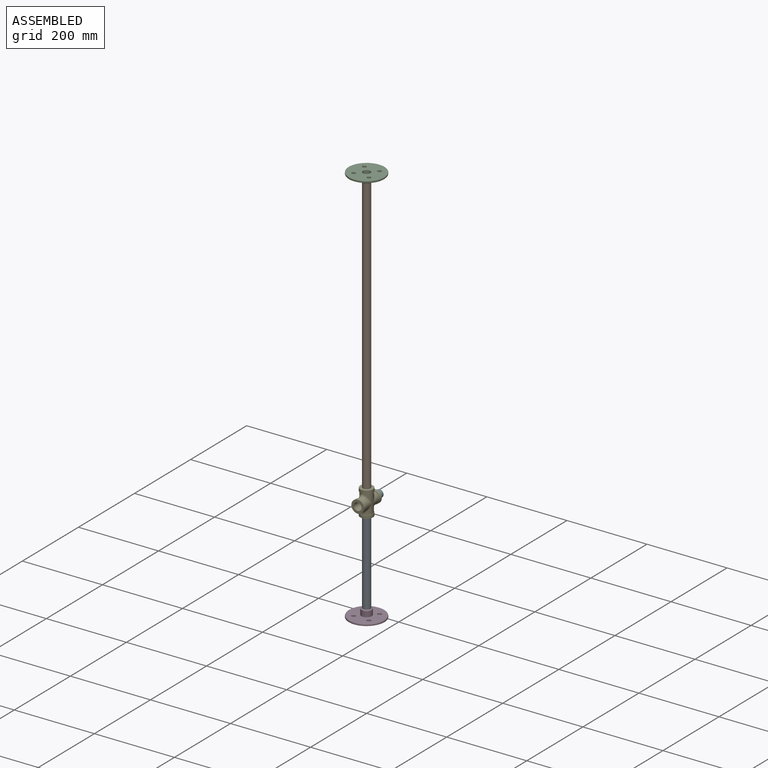
[diagram: assembled view]
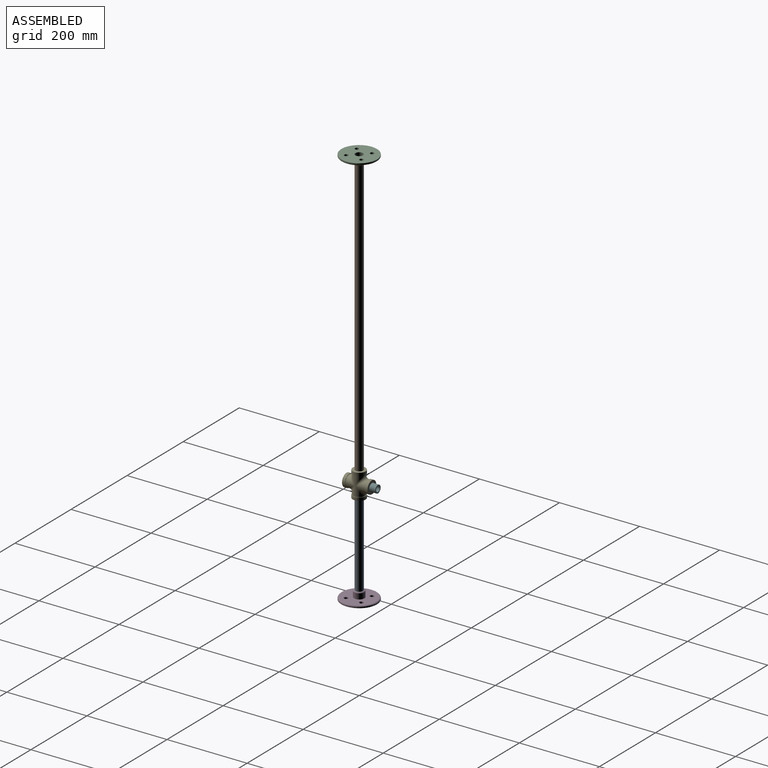
[diagram: assembled view, second angle]
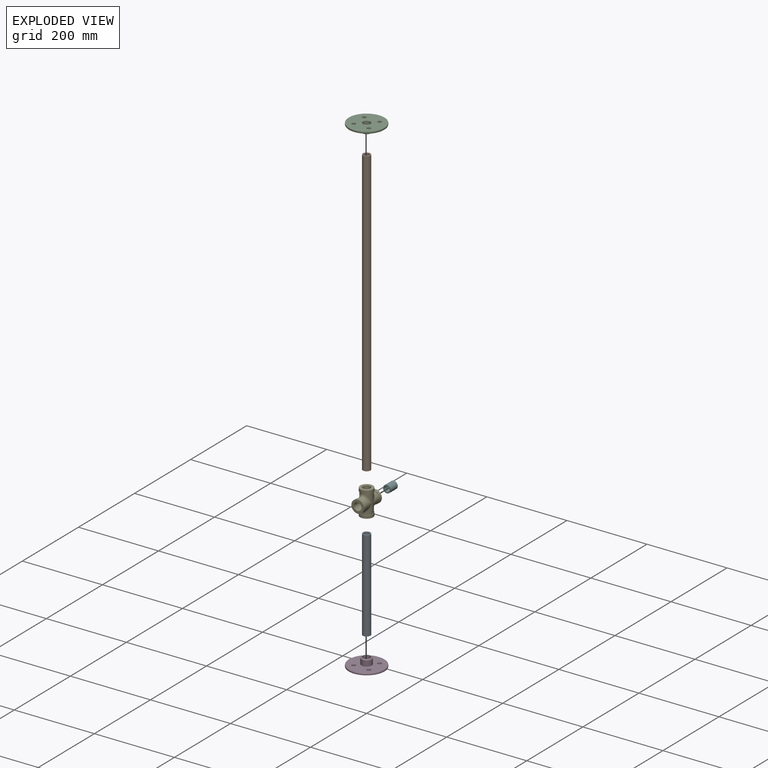
[diagram: exploded view]
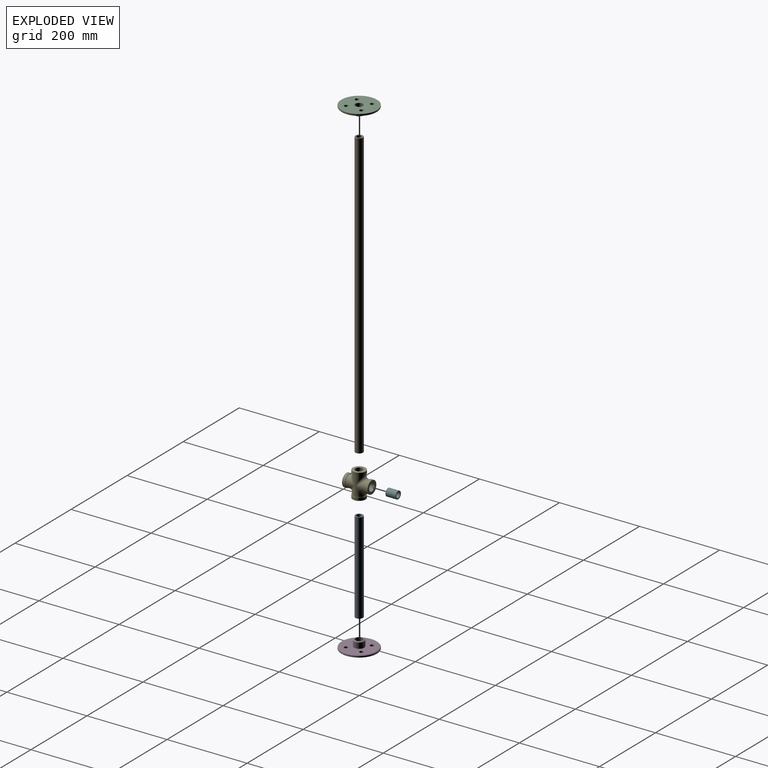
[diagram: exploded view, second angle]
ASSEMBLY  parts=6 mates=5
PART A: 4 faces, bbox 19.1x19.1x228.6 mm
  f0: cylinder r=6.65mm len=228.6mm, axis (0,0,-1), area 9558.5mm2, adj f2,f3
  f1: cylinder r=9.53mm len=228.6mm, axis (0,0,-1), area 13681.1mm2, adj f2,f3
  f2: plane 19.05x19.05mm, normal (0,0,1), area 145.9mm2, adj f0,f1
  f3: plane 19.05x19.05mm, normal (0,0,-1), area 145.9mm2, adj f0,f1
PART B: 4 faces, bbox 19.1x19.1x711.2 mm
  f0: cylinder r=6.65mm len=711.2mm, axis (0,0,-1), area 29737.6mm2, adj f2,f3
  f1: cylinder r=9.53mm len=711.2mm, axis (0,0,-1), area 42563.4mm2, adj f2,f3
  f2: plane 19.05x19.05mm, normal (0,0,1), area 145.9mm2, adj f0,f1
  f3: plane 19.05x19.05mm, normal (0,0,-1), area 145.9mm2, adj f0,f1
PART C: 16 faces, bbox 96.2x96.2x20.8 mm
  f0: cylinder r=44.45mm len=88.9mm, axis (0,0,-1), area 709.4mm2, adj f2,f11
  f1: plane 83.82x83.82mm, normal (0,0,1), area 4537.7mm2, adj f3,f11,f12,f13,f14,f15
  f2: plane 88.9x88.9mm, normal (0,0,-1), area 5637.1mm2, adj f0,f5,f6,f7,f8,f9
  f3: cylinder r=12.9mm len=25.81mm, axis (0,0,-1), area 1070.8mm2, adj f1,f10
  f4: plane 20.73x20.73mm, normal (0,0,1), area 52.4mm2, adj f5,f10
  f5: cylinder r=9.53mm len=20.83mm, axis (0,0,1), area 1246.5mm2, adj f2,f4
  f6: cylinder r=4.76mm len=9.53mm, axis (0,0,1), area 114mm2, adj f2,f15
  f7: cylinder r=4.76mm len=9.53mm, axis (0,0,1), area 114mm2, adj f2,f14
  f8: cylinder r=4.76mm len=9.53mm, axis (0,0,1), area 114mm2, adj f2,f13
  f9: cylinder r=4.76mm len=9.53mm, axis (0,0,1), area 114mm2, adj f2,f12
  f10: torus R=10.36mm, axis (0,0,1), area 300.3mm2, adj f3,f4
  f11: torus R=41.91mm, axis (0,0,1), area 1091.2mm2, adj f0,f1
  f12: torus R=6.03mm, axis (0,0,1), area 65.5mm2, adj f1,f9
  f13: torus R=6.03mm, axis (0,0,1), area 65.5mm2, adj f1,f8
  f14: torus R=6.03mm, axis (0,0,1), area 65.5mm2, adj f1,f7
  f15: torus R=6.03mm, axis (0,0,1), area 65.5mm2, adj f1,f6
PART D: same geometry as C
PART E: 25 faces, bbox 32.3x63.5x63.5 mm
  f0: cylinder r=14.61mm len=29.21mm, axis (0,1,0), area 858.9mm2, adj f11,f18
  f1: cylinder r=14.86mm len=48.26mm, axis (0,0,-1), area 1955.7mm2, adj f11,f12,f14,f16
  f2: cylinder r=9.53mm len=31.75mm, axis (0,1,0), area 1343.7mm2, adj f8,f21,f24
  f3: cylinder r=9.53mm len=31.75mm, axis (0,1,0), area 1343.7mm2, adj f10,f22,f23
  f4: cylinder r=9.53mm len=31.75mm, axis (0,0,-1), area 1343.7mm2, adj f6,f21,f23
  f5: cylinder r=9.53mm len=31.75mm, axis (0,0,-1), area 1343.7mm2, adj f7,f22,f24
  f6: plane 32.26x32.26mm, normal (0,0,1), area 532.2mm2, adj f4,f15
  f7: plane 32.26x32.26mm, normal (0,0,-1), area 532.2mm2, adj f5,f13
  f8: plane 31.75x31.75mm, normal (0,1,0), area 506.7mm2, adj f2,f19
  f9: cylinder r=14.61mm len=29.21mm, axis (0,1,0), area 858.1mm2, adj f12,f20
  f10: plane 31.75x31.75mm, normal (0,-1,0), area 506.7mm2, adj f3,f17
  f11: bspline ~44.47x29.38mm, area 813.3mm2, adj f0,f1
  f12: bspline ~44.47x29.38mm, area 813.3mm2, adj f1,f9
  f13: cylinder r=16.13mm len=32.26mm, axis (0,0,-1), area 772.2mm2, adj f7,f14
  f14: plane 32.26x32.26mm, normal (0,0,1), area 123.6mm2, adj f1,f13
  f15: cylinder r=16.13mm len=32.26mm, axis (0,0,1), area 772.2mm2, adj f6,f16
  f16: plane 32.26x32.26mm, normal (0,0,-1), area 123.6mm2, adj f1,f15
  f17: cylinder r=15.88mm len=31.75mm, axis (0,-1,0), area 760.1mm2, adj f10,f18
  f18: plane 31.75x31.75mm, normal (0,1,0), area 121.6mm2, adj f0,f17
  f19: cylinder r=15.88mm len=31.75mm, axis (0,1,0), area 760.1mm2, adj f8,f20
  f20: plane 31.75x31.75mm, normal (0,-1,0), area 121.6mm2, adj f9,f19
  f21: bspline ~19.05x14.61mm, area 175.6mm2, adj f2,f4
  f22: bspline ~19.05x14.61mm, area 175.6mm2, adj f3,f5
  f23: bspline ~19.05x14.61mm, area 175.6mm2, adj f3,f4
  f24: bspline ~19.05x14.61mm, area 175.6mm2, adj f2,f5
PART F: 4 faces, bbox 19.1x19.1x25.4 mm
  f0: cylinder r=6.65mm len=25.4mm, axis (0,0,-1), area 1062.1mm2, adj f2,f3
  f1: cylinder r=9.53mm len=25.4mm, axis (0,0,-1), area 1520.1mm2, adj f2,f3
  f2: plane 19.05x19.05mm, normal (0,0,1), area 145.9mm2, adj f0,f1
  f3: plane 19.05x19.05mm, normal (0,0,-1), area 145.9mm2, adj f0,f1
PLACE A t=(-25.4,0,124.97)mm
PLACE B t=(0,0,638.05)mm
PLACE C rot(axis=(1,0,0),180deg) t=(0,0,1004.32)mm
PLACE D at identity
PLACE E t=(0,0,260.86)mm
PLACE F rot(axis=(-1,0,0),90deg) t=(-50.8,34.29,260.86)mm
MATE fastened A.f0 <-> D.f0  axis (0,0,1) through (0,0,10.67)mm
MATE fastened F.f0 <-> E.f0  axis (0,1,0) through (0,21.59,260.86)mm
MATE fastened C.f0 <-> B.f0  axis (0,0,1) through (0,0,993.65)mm
MATE fastened B.f0 <-> E.f1  axis (0,0,1) through (0,0,282.45)mm
MATE fastened E.f1 <-> A.f0  axis (0,0,-1) through (0,0,239.27)mm
